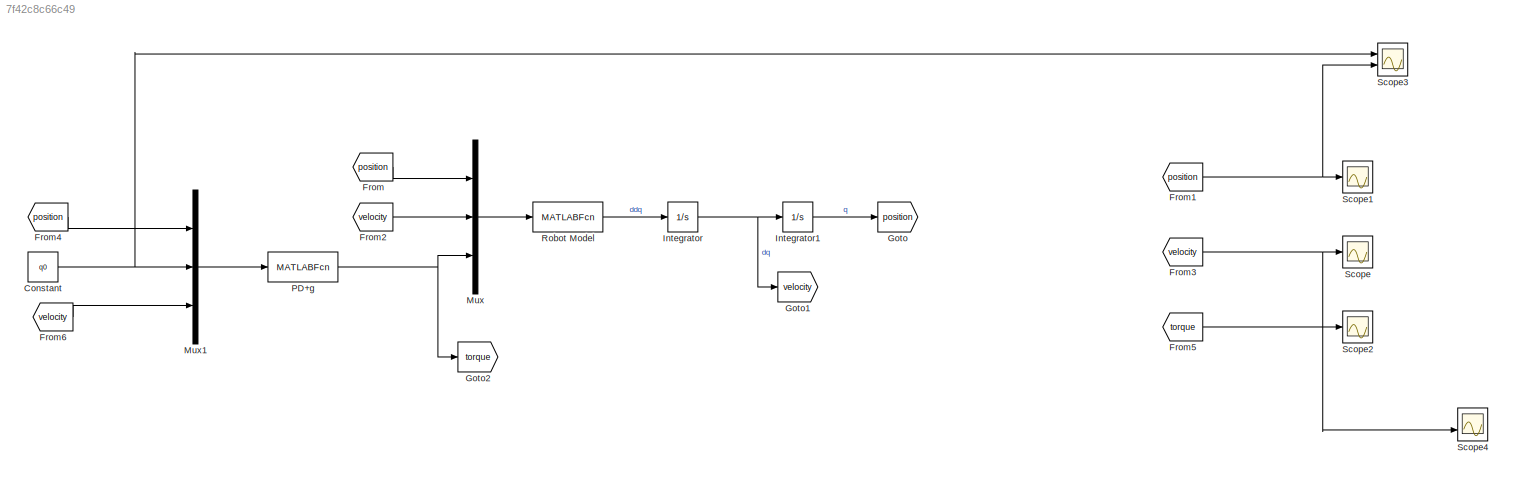
MODEL slx_7f42c8c66c49
KIND model
CONFIG AbsTol = auto
CONFIG EnableMultiTasking = off
CONFIG FixedStep = auto
CONFIG MaxStep = auto
CONFIG MinStep = auto
CONFIG RelTol = 1e-3
CONFIG SampleTimeConstraint = Unconstrained
CONFIG Solver = ode23t
CONFIG SolverName = ode23t
CONFIG StartTime = 0.0
CONFIG StopTime = 30
BLOCK [Constant] Constant
  Value = q0
BLOCK [From] From
  GotoTag = position
BLOCK [From] From1
  GotoTag = position
BLOCK [From] From2
  GotoTag = velocity
BLOCK [From] From3
  GotoTag = velocity
BLOCK [From] From4
  GotoTag = position
BLOCK [From] From5
  GotoTag = torque
BLOCK [From] From6
  GotoTag = velocity
BLOCK [Goto] Goto
  GotoTag = position
BLOCK [Goto] Goto1
  GotoTag = velocity
BLOCK [Goto] Goto2
  GotoTag = torque
BLOCK [Integrator] Integrator
  Ports = [1, 1]
BLOCK [Integrator] Integrator1
  InitialCondition = q0
  Ports = [1, 1]
BLOCK [Mux] Mux
  DisplayOption = bar
  Inputs = [6 6 6]
  Ports = [3, 1]
BLOCK [Mux] Mux1
  DisplayOption = bar
  Inputs = [6 6 6]
  Ports = [3, 1]
BLOCK [MATLABFcn] PD+g
  MATLABFcn = pd_gravity
  OutputDimensions = 6
  Ports = [1, 1]
BLOCK [MATLABFcn] Robot Model
  MATLABFcn = Abb_model_matrix
  OutputDimensions = 6
  Ports = [1, 1]
BLOCK [Scope] Scope
  Floating = off
  NumInputPorts = 1
  Ports = [1]
  ScopeSpecificationString = Simulink.scopes.TimeScopeBlockCfg('CurrentConfiguration', extmgr.ConfigurationSet(extmgr.Configuration('Core','General UI',true),extmgr.Configuration('Core','Source UI',true),extmgr.Configuration('Sources','WiredSimulink',true),extmgr.Configuration('Visuals','Time Domain',true,'SerializedDisplays',{struct('MinYLimReal','-0.19635','MaxYLimReal','1.76715','YLabelReal','','MinYLimMag','0.00000','MaxY...<+1413ch>
BLOCK [Scope] Scope1
  Floating = off
  NumInputPorts = 1
  Ports = [1]
  ScopeSpecificationString = Simulink.scopes.TimeScopeBlockCfg('CurrentConfiguration', extmgr.ConfigurationSet(extmgr.Configuration('Core','General UI',true),extmgr.Configuration('Core','Source UI',true),extmgr.Configuration('Sources','WiredSimulink',true,'DataLoggingVariableName','ScopeData1'),extmgr.Configuration('Visuals','Time Domain',true,'SerializedDisplays',{struct('MinYLimReal','-0.40513','MaxYLimReal','0.74257','YLab...<+1429ch>
BLOCK [Scope] Scope2
  Floating = off
  NumInputPorts = 1
  Ports = [1]
  ScopeSpecificationString = Simulink.scopes.TimeScopeBlockCfg('CurrentConfiguration', extmgr.ConfigurationSet(extmgr.Configuration('Core','General UI',true),extmgr.Configuration('Core','Source UI',true),extmgr.Configuration('Sources','WiredSimulink',true,'DataLoggingVariableName','ScopeData1'),extmgr.Configuration('Visuals','Time Domain',true,'SerializedDisplays',{struct('MinYLimReal','-33.88868','MaxYLimReal','3.79324','YLa...<+1511ch>
BLOCK [Scope] Scope3
  Floating = off
  NumInputPorts = 2
  Ports = [2]
  ScopeSpecificationString = Simulink.scopes.TimeScopeBlockCfg('CurrentConfiguration', extmgr.ConfigurationSet(extmgr.Configuration('Core','General UI',true),extmgr.Configuration('Core','Source UI',true),extmgr.Configuration('Sources','WiredSimulink',true,'DataLoggingVariableName','ScopeData2'),extmgr.Configuration('Visuals','Time Domain',true,'SerializedDisplays',{struct('MinYLimReal','-0.40513','MaxYLimReal','0.74257','YLab...<+1833ch>
BLOCK [Scope] Scope4
  Floating = off
  NumInputPorts = 2
  Ports = [2]
  ScopeSpecificationString = Simulink.scopes.TimeScopeBlockCfg('CurrentConfiguration', extmgr.ConfigurationSet(extmgr.Configuration('Core','General UI',true),extmgr.Configuration('Core','Source UI',true),extmgr.Configuration('Sources','WiredSimulink',true,'DataLoggingVariableName','ScopeData3'),extmgr.Configuration('Visuals','Time Domain',true),extmgr.Configuration('Tools','Plot Navigation',true),extmgr.Configuration('Tools',...<+40ch>
NET Constant:1 -> Mux1:2, Scope3:1
NET From1:1 -> Scope1:1, Scope3:2
LINE From2:1 -> Mux:2
NET From3:1 -> Scope4:2, Scope:1
LINE From4:1 -> Mux1:1
LINE From5:1 -> Scope2:1
LINE From6:1 -> Mux1:3
LINE From:1 -> Mux:1
LINE Integrator1:1 -> Goto:1
NET Integrator:1 -> Goto1:1, Integrator1:1
LINE Mux1:1 -> PD+g:1
LINE Mux:1 -> Robot Model:1
NET PD+g:1 -> Goto2:1, Mux:3
LINE Robot Model:1 -> Integrator:1
note: NET lines group one-source signal fan-out (src -> all destinations, sorted); 1:1 wires keep LINE
